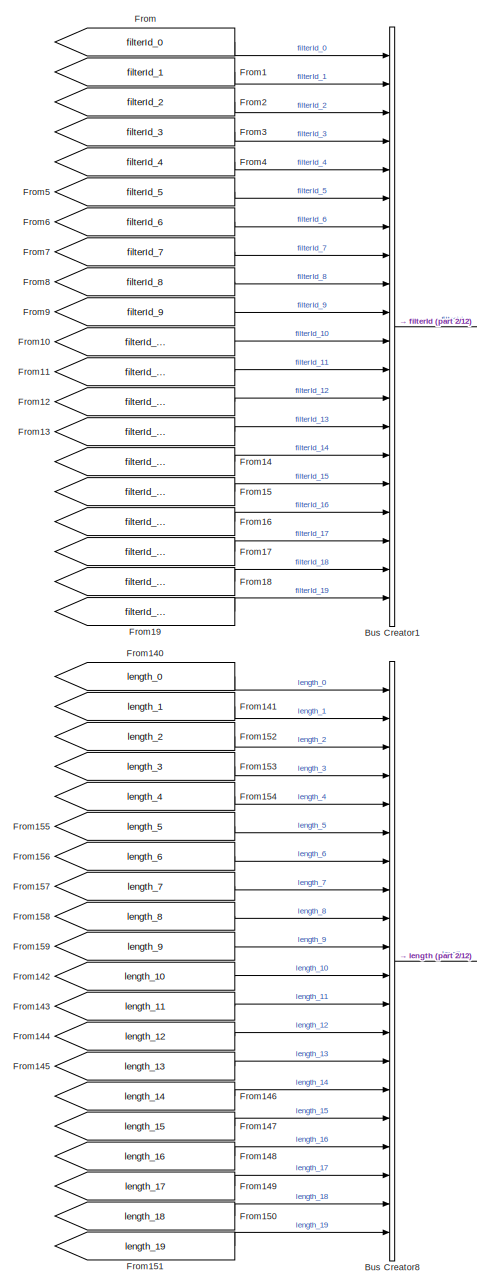
[diagram: root canvas - part 1/12, top left region]
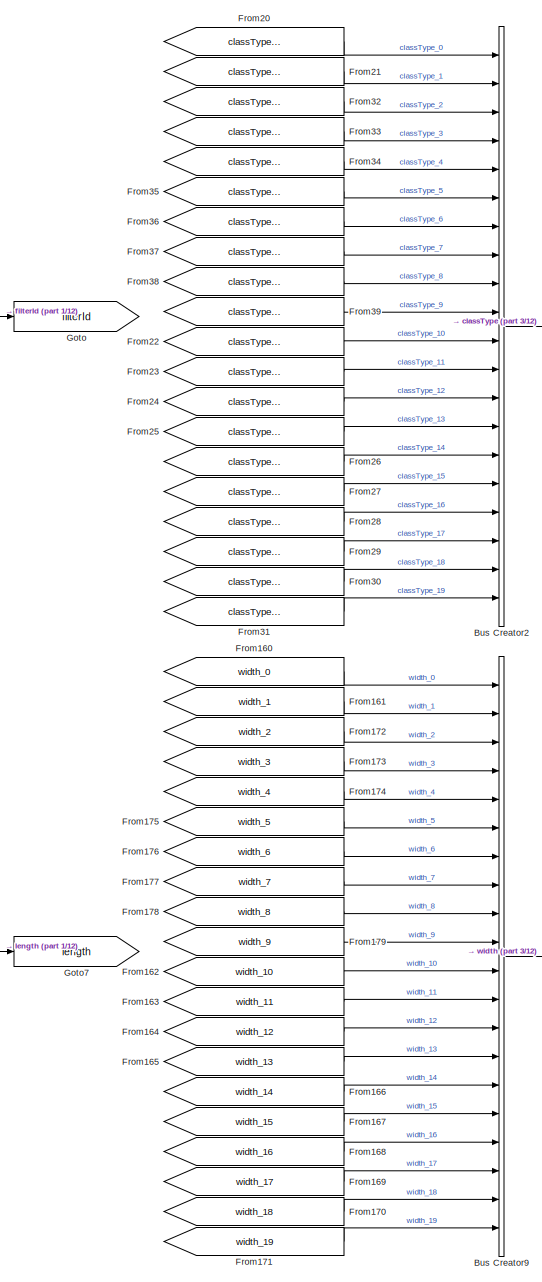
[diagram: root canvas - part 2/12, middle left region]
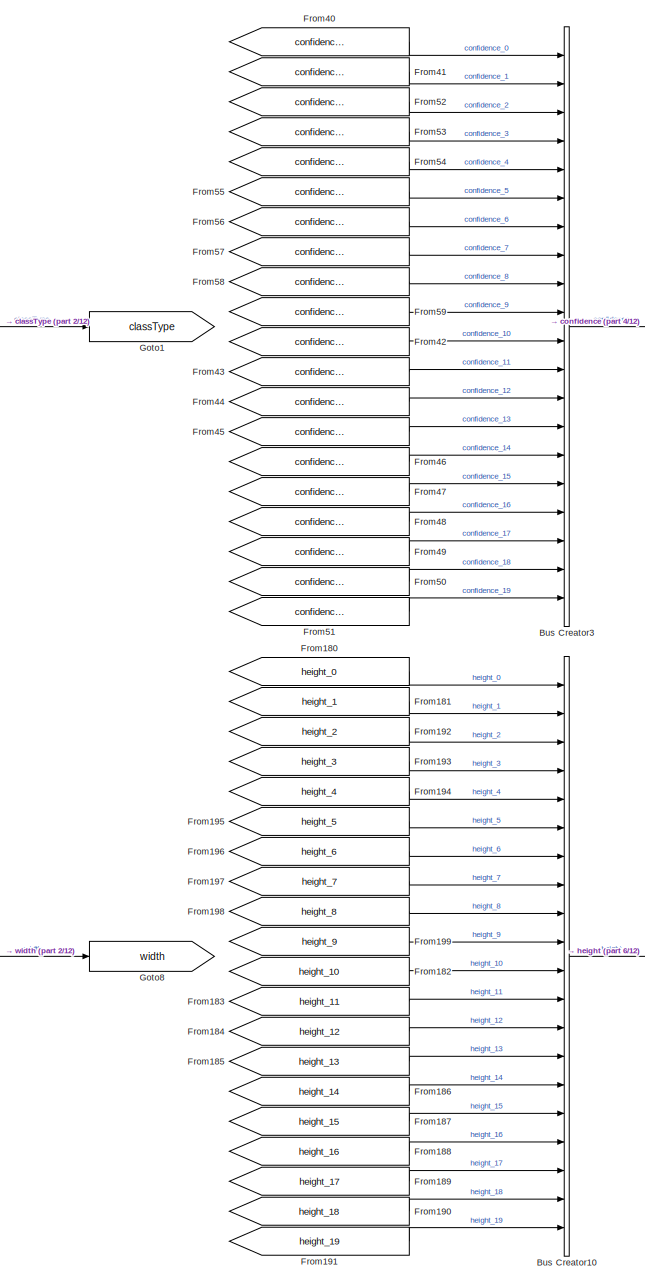
[diagram: root canvas - part 3/12, middle left region]
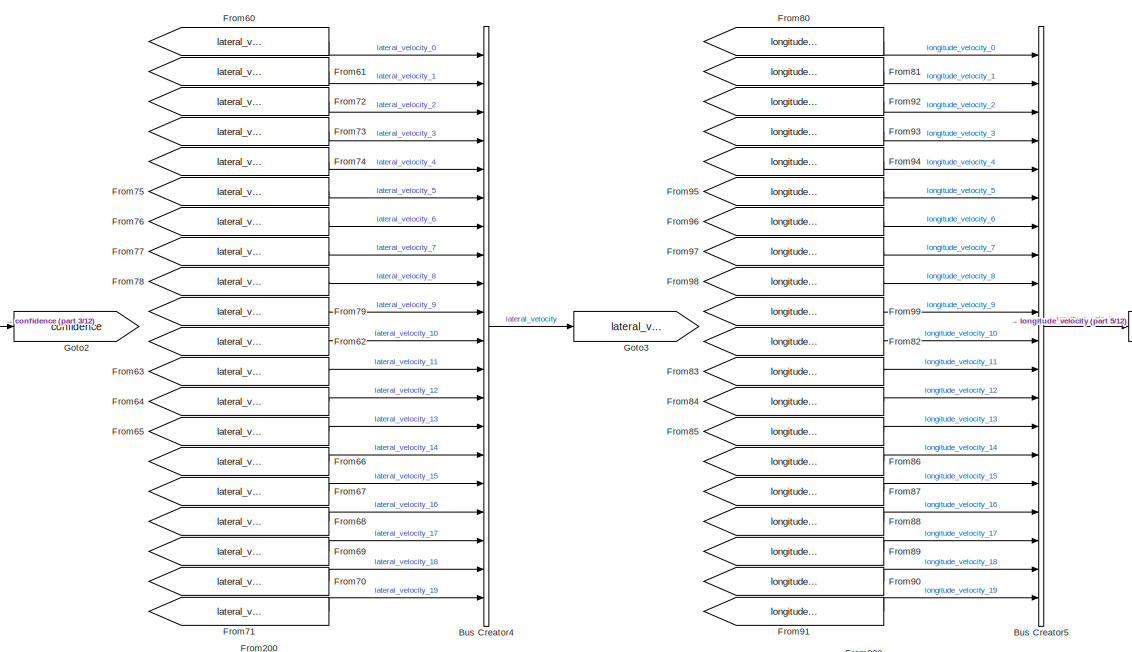
[diagram: root canvas - part 4/12, top center region]
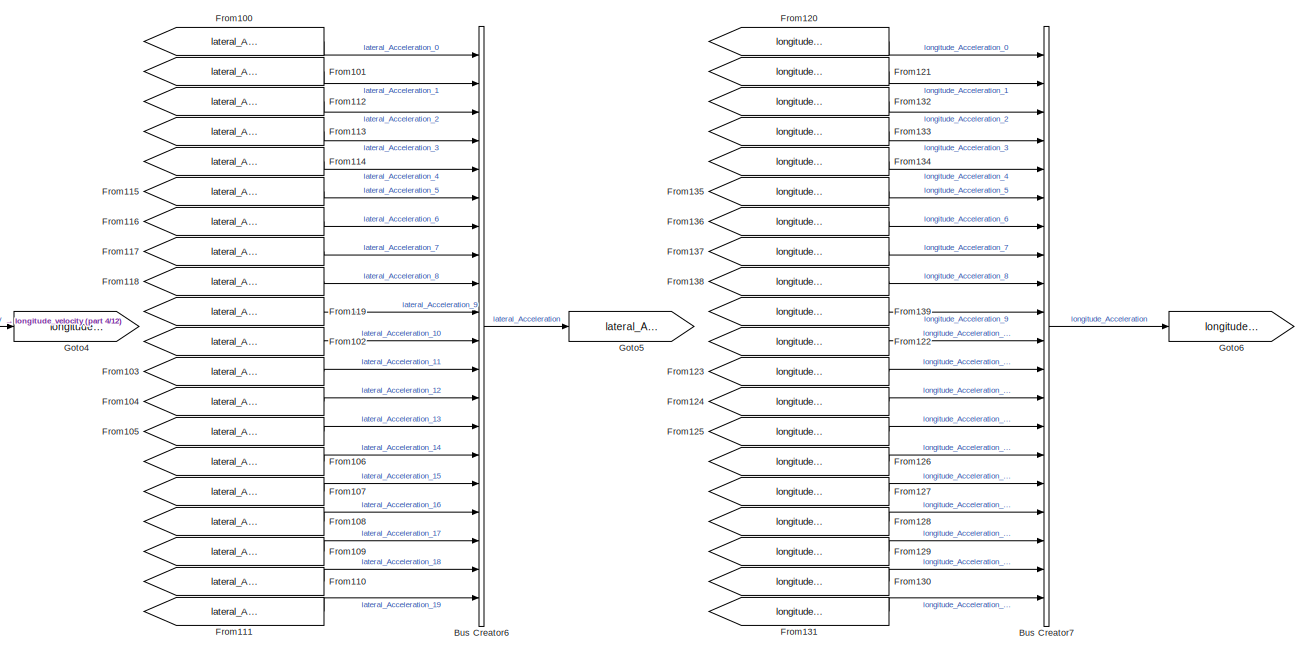
[diagram: root canvas - part 5/12, top center region]
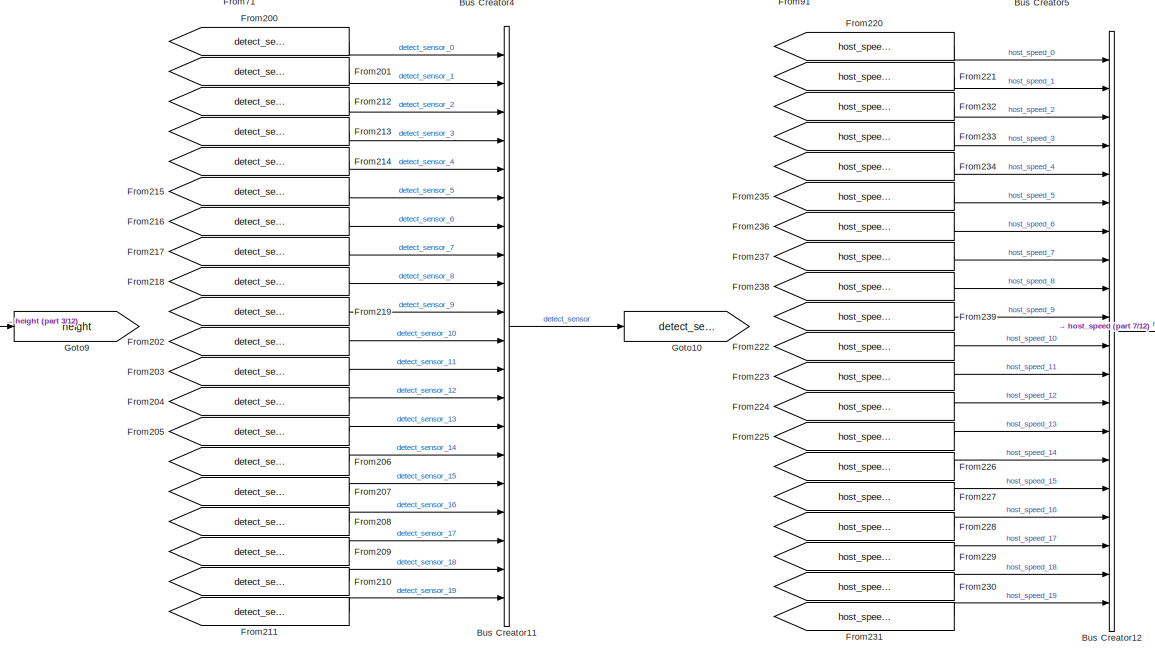
[diagram: root canvas - part 6/12, central region]
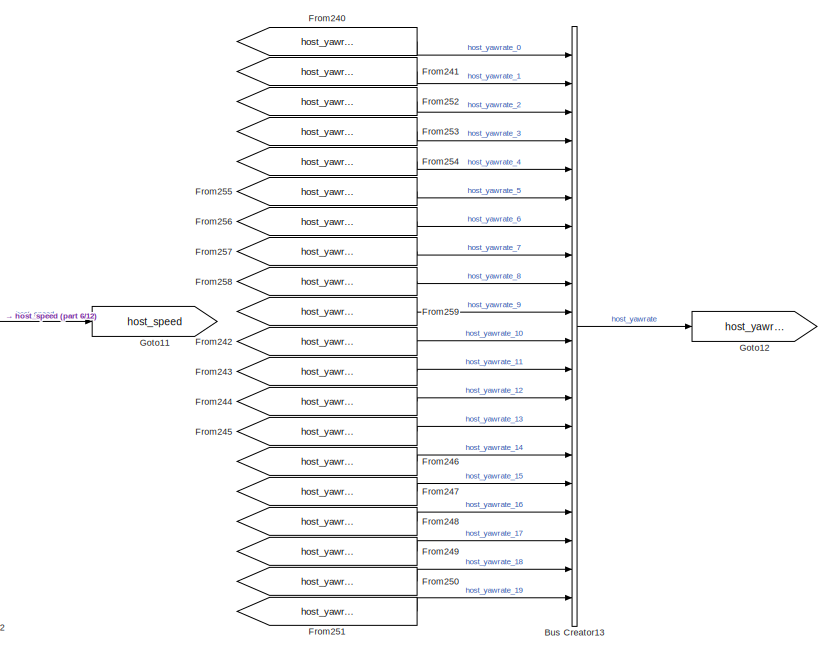
[diagram: root canvas - part 7/12, central region]
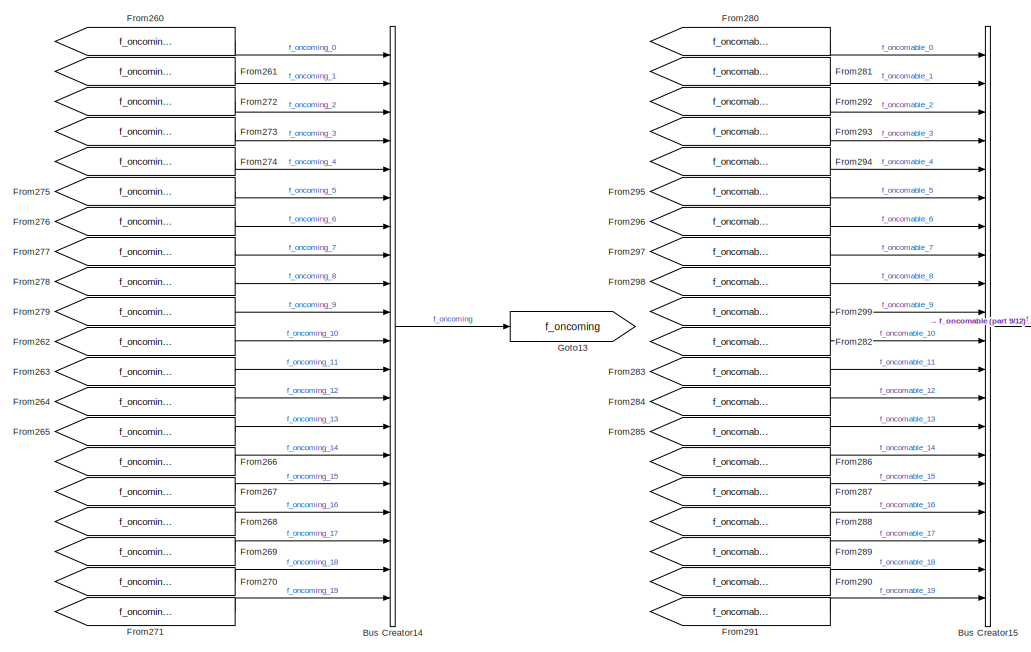
[diagram: root canvas - part 8/12, bottom left region]
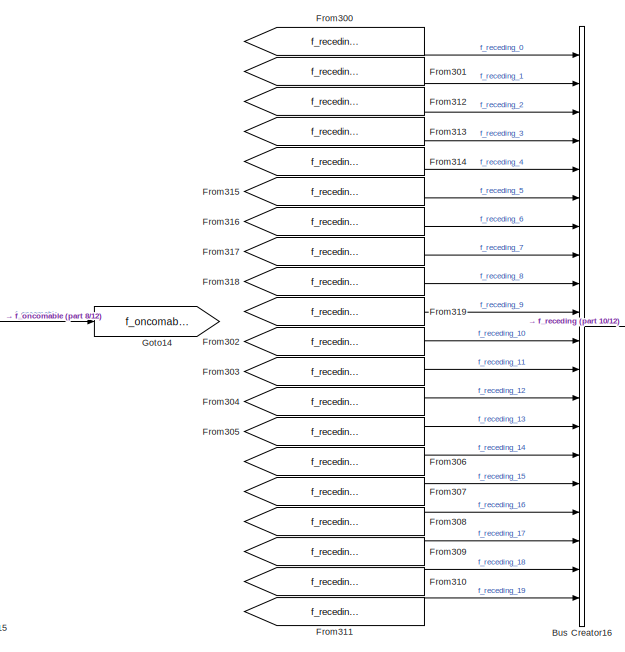
[diagram: root canvas - part 9/12, bottom left region]
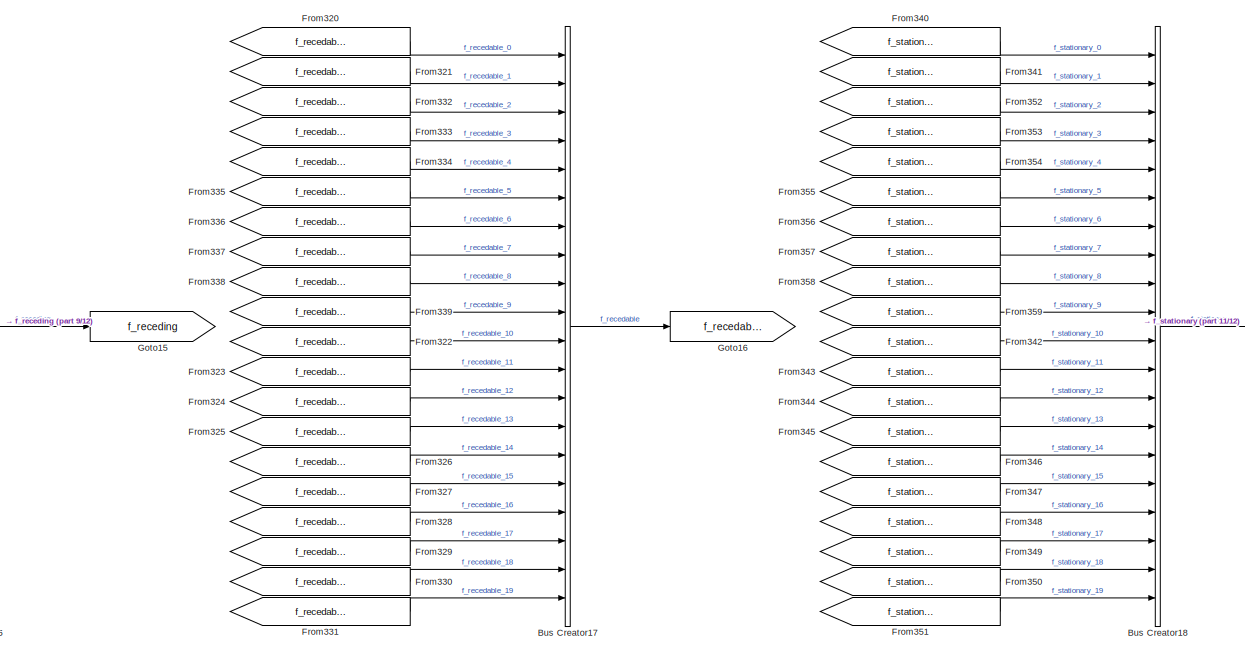
[diagram: root canvas - part 10/12, bottom center region]
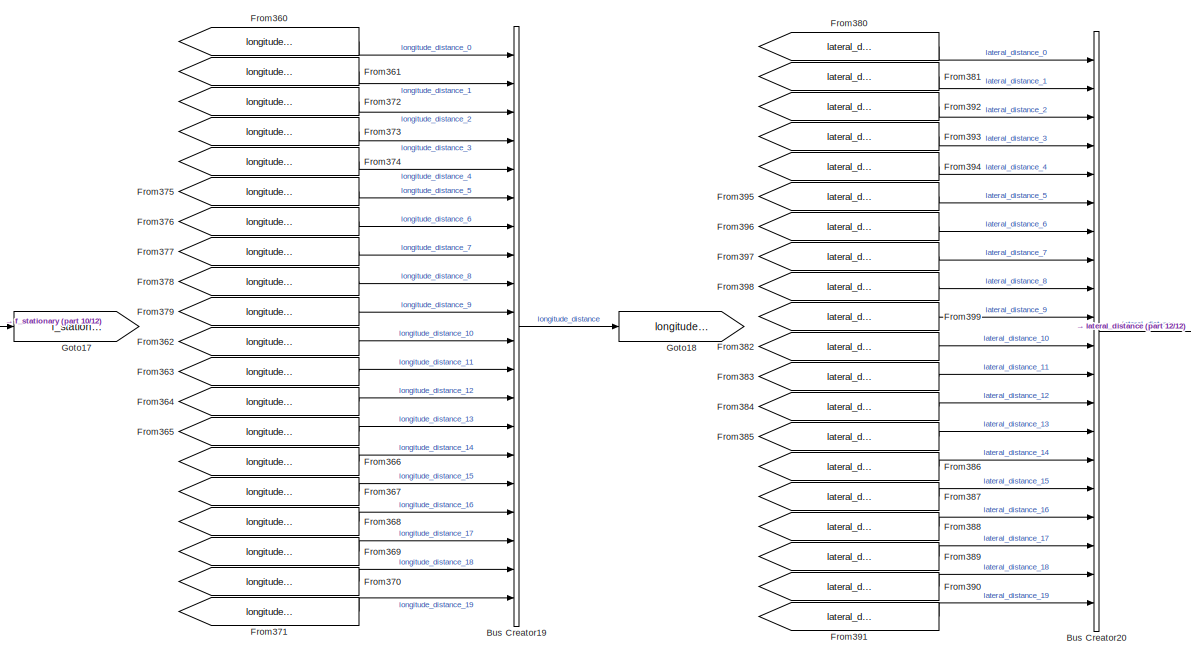
[diagram: root canvas - part 11/12, bottom center region]
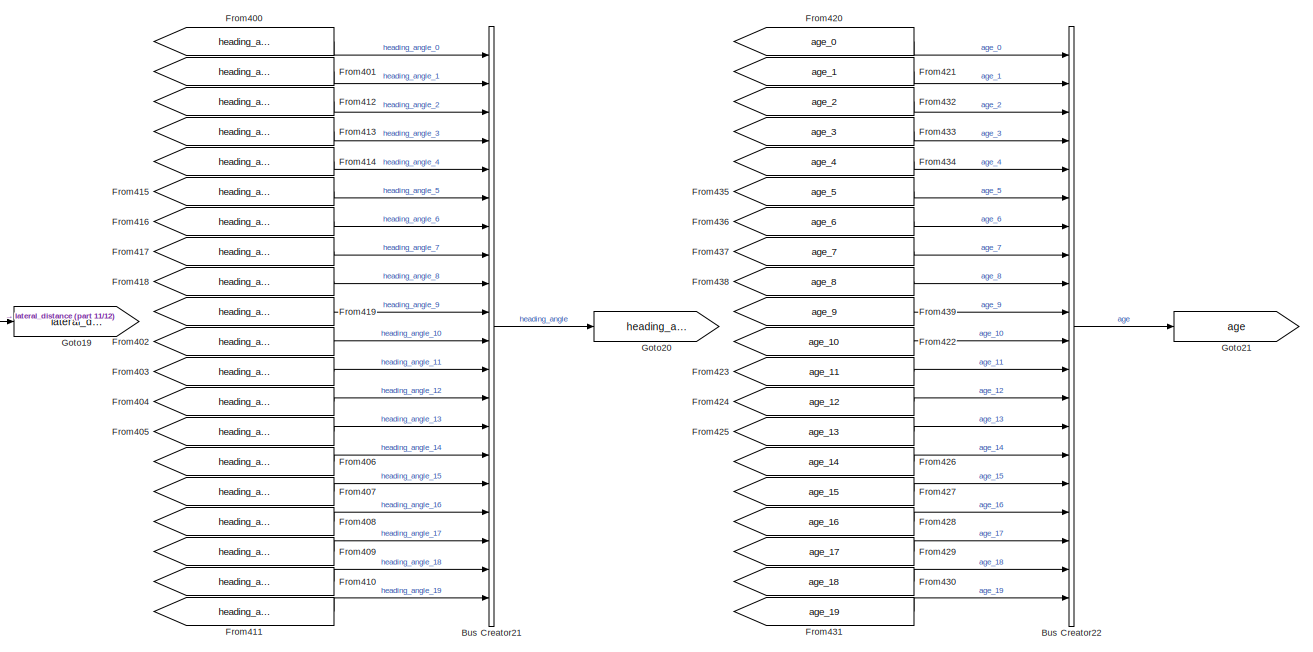
[diagram: root canvas - part 12/12, bottom right region]
MODEL slx_2e494944c7fb
KIND model
CONFIG AbsTol = auto
CONFIG FixedStep = auto
CONFIG MaxStep = auto
CONFIG MinStep = auto
CONFIG RelTol = 1e-3
CONFIG SampleTimeConstraint = Unconstrained
CONFIG Solver = VariableStepAuto
CONFIG SolverMode = Auto
CONFIG SolverName = VariableStepAuto
CONFIG StartTime = 0.0
CONFIG StopTime = 10.0
BLOCK [BusCreator] Bus Creator1
  DisplayOption = bar
  InheritFromInputs = on
  Inputs = 20
  Ports = [20, 1]
BLOCK [BusCreator] Bus Creator10
  DisplayOption = bar
  InheritFromInputs = on
  Inputs = 20
  Ports = [20, 1]
BLOCK [BusCreator] Bus Creator11
  DisplayOption = bar
  InheritFromInputs = on
  Inputs = 20
  Ports = [20, 1]
BLOCK [BusCreator] Bus Creator12
  DisplayOption = bar
  InheritFromInputs = on
  Inputs = 20
  Ports = [20, 1]
BLOCK [BusCreator] Bus Creator13
  DisplayOption = bar
  InheritFromInputs = on
  Inputs = 20
  Ports = [20, 1]
BLOCK [BusCreator] Bus Creator14
  DisplayOption = bar
  InheritFromInputs = on
  Inputs = 20
  Ports = [20, 1]
BLOCK [BusCreator] Bus Creator15
  DisplayOption = bar
  InheritFromInputs = on
  Inputs = 20
  Ports = [20, 1]
BLOCK [BusCreator] Bus Creator16
  DisplayOption = bar
  InheritFromInputs = on
  Inputs = 20
  Ports = [20, 1]
BLOCK [BusCreator] Bus Creator17
  DisplayOption = bar
  InheritFromInputs = on
  Inputs = 20
  Ports = [20, 1]
BLOCK [BusCreator] Bus Creator18
  DisplayOption = bar
  InheritFromInputs = on
  Inputs = 20
  Ports = [20, 1]
BLOCK [BusCreator] Bus Creator19
  DisplayOption = bar
  InheritFromInputs = on
  Inputs = 20
  Ports = [20, 1]
BLOCK [BusCreator] Bus Creator2
  DisplayOption = bar
  InheritFromInputs = on
  Inputs = 20
  Ports = [20, 1]
BLOCK [BusCreator] Bus Creator20
  DisplayOption = bar
  InheritFromInputs = on
  Inputs = 20
  Ports = [20, 1]
BLOCK [BusCreator] Bus Creator21
  DisplayOption = bar
  InheritFromInputs = on
  Inputs = 20
  Ports = [20, 1]
BLOCK [BusCreator] Bus Creator22
  DisplayOption = bar
  InheritFromInputs = on
  Inputs = 20
  Ports = [20, 1]
BLOCK [BusCreator] Bus Creator3
  DisplayOption = bar
  InheritFromInputs = on
  Inputs = 20
  Ports = [20, 1]
BLOCK [BusCreator] Bus Creator4
  DisplayOption = bar
  InheritFromInputs = on
  Inputs = 20
  Ports = [20, 1]
BLOCK [BusCreator] Bus Creator5
  DisplayOption = bar
  InheritFromInputs = on
  Inputs = 20
  Ports = [20, 1]
BLOCK [BusCreator] Bus Creator6
  DisplayOption = bar
  InheritFromInputs = on
  Inputs = 20
  Ports = [20, 1]
BLOCK [BusCreator] Bus Creator7
  DisplayOption = bar
  InheritFromInputs = on
  Inputs = 20
  Ports = [20, 1]
BLOCK [BusCreator] Bus Creator8
  DisplayOption = bar
  InheritFromInputs = on
  Inputs = 20
  Ports = [20, 1]
BLOCK [BusCreator] Bus Creator9
  DisplayOption = bar
  InheritFromInputs = on
  Inputs = 20
  Ports = [20, 1]
BLOCK [From] From
  GotoTag = filterId_0
BLOCK [From] From1
  GotoTag = filterId_1
BLOCK [From] From10
  GotoTag = filterId_10
BLOCK [From] From100
  GotoTag = lateral_Acceleration_0
BLOCK [From] From101
  GotoTag = lateral_Acceleration_1
BLOCK [From] From102
  GotoTag = lateral_Acceleration_10
BLOCK [From] From103
  GotoTag = lateral_Acceleration_11
BLOCK [From] From104
  GotoTag = lateral_Acceleration_12
BLOCK [From] From105
  GotoTag = lateral_Acceleration_13
BLOCK [From] From106
  GotoTag = lateral_Acceleration_14
BLOCK [From] From107
  GotoTag = lateral_Acceleration_15
BLOCK [From] From108
  GotoTag = lateral_Acceleration_16
BLOCK [From] From109
  GotoTag = lateral_Acceleration_17
BLOCK [From] From11
  GotoTag = filterId_11
BLOCK [From] From110
  GotoTag = lateral_Acceleration_18
BLOCK [From] From111
  GotoTag = lateral_Acceleration_19
BLOCK [From] From112
  GotoTag = lateral_Acceleration_2
BLOCK [From] From113
  GotoTag = lateral_Acceleration_3
BLOCK [From] From114
  GotoTag = lateral_Acceleration_4
BLOCK [From] From115
  GotoTag = lateral_Acceleration_5
BLOCK [From] From116
  GotoTag = lateral_Acceleration_6
BLOCK [From] From117
  GotoTag = lateral_Acceleration_7
BLOCK [From] From118
  GotoTag = lateral_Acceleration_8
BLOCK [From] From119
  GotoTag = lateral_Acceleration_9
BLOCK [From] From12
  GotoTag = filterId_12
BLOCK [From] From120
  GotoTag = longitude_Acceleration_0
BLOCK [From] From121
  GotoTag = longitude_Acceleration_1
BLOCK [From] From122
  GotoTag = longitude_Acceleration_10
BLOCK [From] From123
  GotoTag = longitude_Acceleration_11
BLOCK [From] From124
  GotoTag = longitude_Acceleration_12
BLOCK [From] From125
  GotoTag = longitude_Acceleration_13
BLOCK [From] From126
  GotoTag = longitude_Acceleration_14
BLOCK [From] From127
  GotoTag = longitude_Acceleration_15
BLOCK [From] From128
  GotoTag = longitude_Acceleration_16
BLOCK [From] From129
  GotoTag = longitude_Acceleration_17
BLOCK [From] From13
  GotoTag = filterId_13
BLOCK [From] From130
  GotoTag = longitude_Acceleration_18
BLOCK [From] From131
  GotoTag = longitude_Acceleration_19
BLOCK [From] From132
  GotoTag = longitude_Acceleration_2
BLOCK [From] From133
  GotoTag = longitude_Acceleration_3
BLOCK [From] From134
  GotoTag = longitude_Acceleration_4
BLOCK [From] From135
  GotoTag = longitude_Acceleration_5
BLOCK [From] From136
  GotoTag = longitude_Acceleration_6
BLOCK [From] From137
  GotoTag = longitude_Acceleration_7
BLOCK [From] From138
  GotoTag = longitude_Acceleration_8
BLOCK [From] From139
  GotoTag = longitude_Acceleration_9
BLOCK [From] From14
  GotoTag = filterId_14
BLOCK [From] From140
  GotoTag = length_0
BLOCK [From] From141
  GotoTag = length_1
BLOCK [From] From142
  GotoTag = length_10
BLOCK [From] From143
  GotoTag = length_11
BLOCK [From] From144
  GotoTag = length_12
BLOCK [From] From145
  GotoTag = length_13
BLOCK [From] From146
  GotoTag = length_14
BLOCK [From] From147
  GotoTag = length_15
BLOCK [From] From148
  GotoTag = length_16
BLOCK [From] From149
  GotoTag = length_17
BLOCK [From] From15
  GotoTag = filterId_15
BLOCK [From] From150
  GotoTag = length_18
BLOCK [From] From151
  GotoTag = length_19
BLOCK [From] From152
  GotoTag = length_2
BLOCK [From] From153
  GotoTag = length_3
BLOCK [From] From154
  GotoTag = length_4
BLOCK [From] From155
  GotoTag = length_5
BLOCK [From] From156
  GotoTag = length_6
BLOCK [From] From157
  GotoTag = length_7
BLOCK [From] From158
  GotoTag = length_8
BLOCK [From] From159
  GotoTag = length_9
BLOCK [From] From16
  GotoTag = filterId_16
BLOCK [From] From160
  GotoTag = width_0
BLOCK [From] From161
  GotoTag = width_1
BLOCK [From] From162
  GotoTag = width_10
BLOCK [From] From163
  GotoTag = width_11
BLOCK [From] From164
  GotoTag = width_12
BLOCK [From] From165
  GotoTag = width_13
BLOCK [From] From166
  GotoTag = width_14
BLOCK [From] From167
  GotoTag = width_15
BLOCK [From] From168
  GotoTag = width_16
BLOCK [From] From169
  GotoTag = width_17
BLOCK [From] From17
  GotoTag = filterId_17
BLOCK [From] From170
  GotoTag = width_18
BLOCK [From] From171
  GotoTag = width_19
BLOCK [From] From172
  GotoTag = width_2
BLOCK [From] From173
  GotoTag = width_3
BLOCK [From] From174
  GotoTag = width_4
BLOCK [From] From175
  GotoTag = width_5
BLOCK [From] From176
  GotoTag = width_6
BLOCK [From] From177
  GotoTag = width_7
BLOCK [From] From178
  GotoTag = width_8
BLOCK [From] From179
  GotoTag = width_9
BLOCK [From] From18
  GotoTag = filterId_18
BLOCK [From] From180
  GotoTag = height_0
BLOCK [From] From181
  GotoTag = height_1
BLOCK [From] From182
  GotoTag = height_10
BLOCK [From] From183
  GotoTag = height_11
BLOCK [From] From184
  GotoTag = height_12
BLOCK [From] From185
  GotoTag = height_13
BLOCK [From] From186
  GotoTag = height_14
BLOCK [From] From187
  GotoTag = height_15
BLOCK [From] From188
  GotoTag = height_16
BLOCK [From] From189
  GotoTag = height_17
BLOCK [From] From19
  GotoTag = filterId_19
BLOCK [From] From190
  GotoTag = height_18
BLOCK [From] From191
  GotoTag = height_19
BLOCK [From] From192
  GotoTag = height_2
BLOCK [From] From193
  GotoTag = height_3
BLOCK [From] From194
  GotoTag = height_4
BLOCK [From] From195
  GotoTag = height_5
BLOCK [From] From196
  GotoTag = height_6
BLOCK [From] From197
  GotoTag = height_7
BLOCK [From] From198
  GotoTag = height_8
BLOCK [From] From199
  GotoTag = height_9
BLOCK [From] From2
  GotoTag = filterId_2
BLOCK [From] From20
  GotoTag = classType_0
BLOCK [From] From200
  GotoTag = detect_sensor_0
BLOCK [From] From201
  GotoTag = detect_sensor_1
BLOCK [From] From202
  GotoTag = detect_sensor_10
BLOCK [From] From203
  GotoTag = detect_sensor_11
BLOCK [From] From204
  GotoTag = detect_sensor_12
BLOCK [From] From205
  GotoTag = detect_sensor_13
BLOCK [From] From206
  GotoTag = detect_sensor_14
BLOCK [From] From207
  GotoTag = detect_sensor_15
BLOCK [From] From208
  GotoTag = detect_sensor_16
BLOCK [From] From209
  GotoTag = detect_sensor_17
BLOCK [From] From21
  GotoTag = classType_1
BLOCK [From] From210
  GotoTag = detect_sensor_18
BLOCK [From] From211
  GotoTag = detect_sensor_19
BLOCK [From] From212
  GotoTag = detect_sensor_2
BLOCK [From] From213
  GotoTag = detect_sensor_3
BLOCK [From] From214
  GotoTag = detect_sensor_4
BLOCK [From] From215
  GotoTag = detect_sensor_5
BLOCK [From] From216
  GotoTag = detect_sensor_6
BLOCK [From] From217
  GotoTag = detect_sensor_7
BLOCK [From] From218
  GotoTag = detect_sensor_8
BLOCK [From] From219
  GotoTag = detect_sensor_9
BLOCK [From] From22
  GotoTag = classType_10
BLOCK [From] From220
  GotoTag = host_speed_0
BLOCK [From] From221
  GotoTag = host_speed_1
BLOCK [From] From222
  GotoTag = host_speed_10
BLOCK [From] From223
  GotoTag = host_speed_11
BLOCK [From] From224
  GotoTag = host_speed_12
BLOCK [From] From225
  GotoTag = host_speed_13
BLOCK [From] From226
  GotoTag = host_speed_14
BLOCK [From] From227
  GotoTag = host_speed_15
BLOCK [From] From228
  GotoTag = host_speed_16
BLOCK [From] From229
  GotoTag = host_speed_17
BLOCK [From] From23
  GotoTag = classType_11
BLOCK [From] From230
  GotoTag = host_speed_18
BLOCK [From] From231
  GotoTag = host_speed_19
BLOCK [From] From232
  GotoTag = host_speed_2
BLOCK [From] From233
  GotoTag = host_speed_3
BLOCK [From] From234
  GotoTag = host_speed_4
BLOCK [From] From235
  GotoTag = host_speed_5
BLOCK [From] From236
  GotoTag = host_speed_6
BLOCK [From] From237
  GotoTag = host_speed_7
BLOCK [From] From238
  GotoTag = host_speed_8
BLOCK [From] From239
  GotoTag = host_speed_9
BLOCK [From] From24
  GotoTag = classType_12
BLOCK [From] From240
  GotoTag = host_yawrate_0
BLOCK [From] From241
  GotoTag = host_yawrate_1
BLOCK [From] From242
  GotoTag = host_yawrate_10
BLOCK [From] From243
  GotoTag = host_yawrate_11
BLOCK [From] From244
  GotoTag = host_yawrate_12
BLOCK [From] From245
  GotoTag = host_yawrate_13
BLOCK [From] From246
  GotoTag = host_yawrate_14
BLOCK [From] From247
  GotoTag = host_yawrate_15
BLOCK [From] From248
  GotoTag = host_yawrate_16
BLOCK [From] From249
  GotoTag = host_yawrate_17
BLOCK [From] From25
  GotoTag = classType_13
BLOCK [From] From250
  GotoTag = host_yawrate_18
BLOCK [From] From251
  GotoTag = host_yawrate_19
BLOCK [From] From252
  GotoTag = host_yawrate_2
BLOCK [From] From253
  GotoTag = host_yawrate_3
BLOCK [From] From254
  GotoTag = host_yawrate_4
BLOCK [From] From255
  GotoTag = host_yawrate_5
BLOCK [From] From256
  GotoTag = host_yawrate_6
BLOCK [From] From257
  GotoTag = host_yawrate_7
BLOCK [From] From258
  GotoTag = host_yawrate_8
BLOCK [From] From259
  GotoTag = host_yawrate_9
BLOCK [From] From26
  GotoTag = classType_14
BLOCK [From] From260
  GotoTag = f_oncoming_0
BLOCK [From] From261
  GotoTag = f_oncoming_1
BLOCK [From] From262
  GotoTag = f_oncoming_10
BLOCK [From] From263
  GotoTag = f_oncoming_11
BLOCK [From] From264
  GotoTag = f_oncoming_12
BLOCK [From] From265
  GotoTag = f_oncoming_13
BLOCK [From] From266
  GotoTag = f_oncoming_14
BLOCK [From] From267
  GotoTag = f_oncoming_15
BLOCK [From] From268
  GotoTag = f_oncoming_16
BLOCK [From] From269
  GotoTag = f_oncoming_17
BLOCK [From] From27
  GotoTag = classType_15
BLOCK [From] From270
  GotoTag = f_oncoming_18
BLOCK [From] From271
  GotoTag = f_oncoming_19
BLOCK [From] From272
  GotoTag = f_oncoming_2
BLOCK [From] From273
  GotoTag = f_oncoming_3
BLOCK [From] From274
  GotoTag = f_oncoming_4
BLOCK [From] From275
  GotoTag = f_oncoming_5
BLOCK [From] From276
  GotoTag = f_oncoming_6
BLOCK [From] From277
  GotoTag = f_oncoming_7
BLOCK [From] From278
  GotoTag = f_oncoming_8
BLOCK [From] From279
  GotoTag = f_oncoming_9
BLOCK [From] From28
  GotoTag = classType_16
BLOCK [From] From280
  GotoTag = f_oncomable_0
BLOCK [From] From281
  GotoTag = f_oncomable_1
BLOCK [From] From282
  GotoTag = f_oncomable_10
BLOCK [From] From283
  GotoTag = f_oncomable_11
BLOCK [From] From284
  GotoTag = f_oncomable_12
BLOCK [From] From285
  GotoTag = f_oncomable_13
BLOCK [From] From286
  GotoTag = f_oncomable_14
BLOCK [From] From287
  GotoTag = f_oncomable_15
BLOCK [From] From288
  GotoTag = f_oncomable_16
BLOCK [From] From289
  GotoTag = f_oncomable_17
BLOCK [From] From29
  GotoTag = classType_17
BLOCK [From] From290
  GotoTag = f_oncomable_18
BLOCK [From] From291
  GotoTag = f_oncomable_19
BLOCK [From] From292
  GotoTag = f_oncomable_2
BLOCK [From] From293
  GotoTag = f_oncomable_3
BLOCK [From] From294
  GotoTag = f_oncomable_4
BLOCK [From] From295
  GotoTag = f_oncomable_5
BLOCK [From] From296
  GotoTag = f_oncomable_6
BLOCK [From] From297
  GotoTag = f_oncomable_7
BLOCK [From] From298
  GotoTag = f_oncomable_8
BLOCK [From] From299
  GotoTag = f_oncomable_9
BLOCK [From] From3
  GotoTag = filterId_3
BLOCK [From] From30
  GotoTag = classType_18
BLOCK [From] From300
  GotoTag = f_receding_0
BLOCK [From] From301
  GotoTag = f_receding_1
BLOCK [From] From302
  GotoTag = f_receding_10
BLOCK [From] From303
  GotoTag = f_receding_11
BLOCK [From] From304
  GotoTag = f_receding_12
BLOCK [From] From305
  GotoTag = f_receding_13
BLOCK [From] From306
  GotoTag = f_receding_14
BLOCK [From] From307
  GotoTag = f_receding_15
BLOCK [From] From308
  GotoTag = f_receding_16
BLOCK [From] From309
  GotoTag = f_receding_17
BLOCK [From] From31
  GotoTag = classType_19
BLOCK [From] From310
  GotoTag = f_receding_18
BLOCK [From] From311
  GotoTag = f_receding_19
BLOCK [From] From312
  GotoTag = f_receding_2
BLOCK [From] From313
  GotoTag = f_receding_3
BLOCK [From] From314
  GotoTag = f_receding_4
BLOCK [From] From315
  GotoTag = f_receding_5
BLOCK [From] From316
  GotoTag = f_receding_6
BLOCK [From] From317
  GotoTag = f_receding_7
BLOCK [From] From318
  GotoTag = f_receding_8
BLOCK [From] From319
  GotoTag = f_receding_9
BLOCK [From] From32
  GotoTag = classType_2
BLOCK [From] From320
  GotoTag = f_recedable_0
BLOCK [From] From321
  GotoTag = f_recedable_1
BLOCK [From] From322
  GotoTag = f_recedable_10
BLOCK [From] From323
  GotoTag = f_recedable_11
BLOCK [From] From324
  GotoTag = f_recedable_12
BLOCK [From] From325
  GotoTag = f_recedable_13
BLOCK [From] From326
  GotoTag = f_recedable_14
BLOCK [From] From327
  GotoTag = f_recedable_15
BLOCK [From] From328
  GotoTag = f_recedable_16
BLOCK [From] From329
  GotoTag = f_recedable_17
BLOCK [From] From33
  GotoTag = classType_3
BLOCK [From] From330
  GotoTag = f_recedable_18
BLOCK [From] From331
  GotoTag = f_recedable_19
BLOCK [From] From332
  GotoTag = f_recedable_2
BLOCK [From] From333
  GotoTag = f_recedable_3
BLOCK [From] From334
  GotoTag = f_recedable_4
BLOCK [From] From335
  GotoTag = f_recedable_5
BLOCK [From] From336
  GotoTag = f_recedable_6
BLOCK [From] From337
  GotoTag = f_recedable_7
BLOCK [From] From338
  GotoTag = f_recedable_8
BLOCK [From] From339
  GotoTag = f_recedable_9
BLOCK [From] From34
  GotoTag = classType_4
BLOCK [From] From340
  GotoTag = f_stationary_0
BLOCK [From] From341
  GotoTag = f_stationary_1
BLOCK [From] From342
  GotoTag = f_stationary_10
BLOCK [From] From343
  GotoTag = f_stationary_11
BLOCK [From] From344
  GotoTag = f_stationary_12
BLOCK [From] From345
  GotoTag = f_stationary_13
BLOCK [From] From346
  GotoTag = f_stationary_14
BLOCK [From] From347
  GotoTag = f_stationary_15
BLOCK [From] From348
  GotoTag = f_stationary_16
BLOCK [From] From349
  GotoTag = f_stationary_17
BLOCK [From] From35
  GotoTag = classType_5
BLOCK [From] From350
  GotoTag = f_stationary_18
BLOCK [From] From351
  GotoTag = f_stationary_19
BLOCK [From] From352
  GotoTag = f_stationary_2
BLOCK [From] From353
  GotoTag = f_stationary_3
BLOCK [From] From354
  GotoTag = f_stationary_4
BLOCK [From] From355
  GotoTag = f_stationary_5
BLOCK [From] From356
  GotoTag = f_stationary_6
BLOCK [From] From357
  GotoTag = f_stationary_7
BLOCK [From] From358
  GotoTag = f_stationary_8
BLOCK [From] From359
  GotoTag = f_stationary_9
BLOCK [From] From36
  GotoTag = classType_6
BLOCK [From] From360
  GotoTag = longitude_distance_0
BLOCK [From] From361
  GotoTag = longitude_distance_1
BLOCK [From] From362
  GotoTag = longitude_distance_10
BLOCK [From] From363
  GotoTag = longitude_distance_11
BLOCK [From] From364
  GotoTag = longitude_distance_12
BLOCK [From] From365
  GotoTag = longitude_distance_13
BLOCK [From] From366
  GotoTag = longitude_distance_14
BLOCK [From] From367
  GotoTag = longitude_distance_15
BLOCK [From] From368
  GotoTag = longitude_distance_16
BLOCK [From] From369
  GotoTag = longitude_distance_17
BLOCK [From] From37
  GotoTag = classType_7
BLOCK [From] From370
  GotoTag = longitude_distance_18
BLOCK [From] From371
  GotoTag = longitude_distance_19
BLOCK [From] From372
  GotoTag = longitude_distance_2
BLOCK [From] From373
  GotoTag = longitude_distance_3
BLOCK [From] From374
  GotoTag = longitude_distance_4
BLOCK [From] From375
  GotoTag = longitude_distance_5
BLOCK [From] From376
  GotoTag = longitude_distance_6
BLOCK [From] From377
  GotoTag = longitude_distance_7
BLOCK [From] From378
  GotoTag = longitude_distance_8
BLOCK [From] From379
  GotoTag = longitude_distance_9
BLOCK [From] From38
  GotoTag = classType_8
BLOCK [From] From380
  GotoTag = lateral_distance_0
BLOCK [From] From381
  GotoTag = lateral_distance_1
BLOCK [From] From382
  GotoTag = lateral_distance_10
BLOCK [From] From383
  GotoTag = lateral_distance_11
BLOCK [From] From384
  GotoTag = lateral_distance_12
BLOCK [From] From385
  GotoTag = lateral_distance_13
BLOCK [From] From386
  GotoTag = lateral_distance_14
BLOCK [From] From387
  GotoTag = lateral_distance_15
BLOCK [From] From388
  GotoTag = lateral_distance_16
BLOCK [From] From389
  GotoTag = lateral_distance_17
BLOCK [From] From39
  GotoTag = classType_9
BLOCK [From] From390
  GotoTag = lateral_distance_18
BLOCK [From] From391
  GotoTag = lateral_distance_19
BLOCK [From] From392
  GotoTag = lateral_distance_2
BLOCK [From] From393
  GotoTag = lateral_distance_3
BLOCK [From] From394
  GotoTag = lateral_distance_4
BLOCK [From] From395
  GotoTag = lateral_distance_5
BLOCK [From] From396
  GotoTag = lateral_distance_6
BLOCK [From] From397
  GotoTag = lateral_distance_7
BLOCK [From] From398
  GotoTag = lateral_distance_8
BLOCK [From] From399
  GotoTag = lateral_distance_9
BLOCK [From] From4
  GotoTag = filterId_4
BLOCK [From] From40
  GotoTag = confidence_0
BLOCK [From] From400
  GotoTag = heading_angle_0
BLOCK [From] From401
  GotoTag = heading_angle_1
BLOCK [From] From402
  GotoTag = heading_angle_10
BLOCK [From] From403
  GotoTag = heading_angle_11
BLOCK [From] From404
  GotoTag = heading_angle_12
BLOCK [From] From405
  GotoTag = heading_angle_13
BLOCK [From] From406
  GotoTag = heading_angle_14
BLOCK [From] From407
  GotoTag = heading_angle_15
BLOCK [From] From408
  GotoTag = heading_angle_16
BLOCK [From] From409
  GotoTag = heading_angle_17
BLOCK [From] From41
  GotoTag = confidence_1
BLOCK [From] From410
  GotoTag = heading_angle_18
BLOCK [From] From411
  GotoTag = heading_angle_19
BLOCK [From] From412
  GotoTag = heading_angle_2
BLOCK [From] From413
  GotoTag = heading_angle_3
BLOCK [From] From414
  GotoTag = heading_angle_4
BLOCK [From] From415
  GotoTag = heading_angle_5
BLOCK [From] From416
  GotoTag = heading_angle_6
BLOCK [From] From417
  GotoTag = heading_angle_7
BLOCK [From] From418
  GotoTag = heading_angle_8
BLOCK [From] From419
  GotoTag = heading_angle_9
BLOCK [From] From42
  GotoTag = confidence_10
BLOCK [From] From420
  GotoTag = age_0
BLOCK [From] From421
  GotoTag = age_1
BLOCK [From] From422
  GotoTag = age_10
BLOCK [From] From423
  GotoTag = age_11
BLOCK [From] From424
  GotoTag = age_12
BLOCK [From] From425
  GotoTag = age_13
BLOCK [From] From426
  GotoTag = age_14
BLOCK [From] From427
  GotoTag = age_15
BLOCK [From] From428
  GotoTag = age_16
BLOCK [From] From429
  GotoTag = age_17
BLOCK [From] From43
  GotoTag = confidence_11
BLOCK [From] From430
  GotoTag = age_18
BLOCK [From] From431
  GotoTag = age_19
BLOCK [From] From432
  GotoTag = age_2
BLOCK [From] From433
  GotoTag = age_3
BLOCK [From] From434
  GotoTag = age_4
BLOCK [From] From435
  GotoTag = age_5
BLOCK [From] From436
  GotoTag = age_6
BLOCK [From] From437
  GotoTag = age_7
BLOCK [From] From438
  GotoTag = age_8
BLOCK [From] From439
  GotoTag = age_9
BLOCK [From] From44
  GotoTag = confidence_12
BLOCK [From] From45
  GotoTag = confidence_13
BLOCK [From] From46
  GotoTag = confidence_14
BLOCK [From] From47
  GotoTag = confidence_15
BLOCK [From] From48
  GotoTag = confidence_16
BLOCK [From] From49
  GotoTag = confidence_17
BLOCK [From] From5
  GotoTag = filterId_5
BLOCK [From] From50
  GotoTag = confidence_18
BLOCK [From] From51
  GotoTag = confidence_19
BLOCK [From] From52
  GotoTag = confidence_2
BLOCK [From] From53
  GotoTag = confidence_3
BLOCK [From] From54
  GotoTag = confidence_4
BLOCK [From] From55
  GotoTag = confidence_5
BLOCK [From] From56
  GotoTag = confidence_6
BLOCK [From] From57
  GotoTag = confidence_7
BLOCK [From] From58
  GotoTag = confidence_8
BLOCK [From] From59
  GotoTag = confidence_9
BLOCK [From] From6
  GotoTag = filterId_6
BLOCK [From] From60
  GotoTag = lateral_velocity_0
BLOCK [From] From61
  GotoTag = lateral_velocity_1
BLOCK [From] From62
  GotoTag = lateral_velocity_10
BLOCK [From] From63
  GotoTag = lateral_velocity_11
BLOCK [From] From64
  GotoTag = lateral_velocity_12
BLOCK [From] From65
  GotoTag = lateral_velocity_13
BLOCK [From] From66
  GotoTag = lateral_velocity_14
BLOCK [From] From67
  GotoTag = lateral_velocity_15
BLOCK [From] From68
  GotoTag = lateral_velocity_16
BLOCK [From] From69
  GotoTag = lateral_velocity_17
BLOCK [From] From7
  GotoTag = filterId_7
BLOCK [From] From70
  GotoTag = lateral_velocity_18
BLOCK [From] From71
  GotoTag = lateral_velocity_19
BLOCK [From] From72
  GotoTag = lateral_velocity_2
BLOCK [From] From73
  GotoTag = lateral_velocity_3
BLOCK [From] From74
  GotoTag = lateral_velocity_4
BLOCK [From] From75
  GotoTag = lateral_velocity_5
BLOCK [From] From76
  GotoTag = lateral_velocity_6
BLOCK [From] From77
  GotoTag = lateral_velocity_7
BLOCK [From] From78
  GotoTag = lateral_velocity_8
BLOCK [From] From79
  GotoTag = lateral_velocity_9
BLOCK [From] From8
  GotoTag = filterId_8
BLOCK [From] From80
  GotoTag = longitude_velocity_0
BLOCK [From] From81
  GotoTag = longitude_velocity_1
BLOCK [From] From82
  GotoTag = longitude_velocity_10
BLOCK [From] From83
  GotoTag = longitude_velocity_11
BLOCK [From] From84
  GotoTag = longitude_velocity_12
BLOCK [From] From85
  GotoTag = longitude_velocity_13
BLOCK [From] From86
  GotoTag = longitude_velocity_14
BLOCK [From] From87
  GotoTag = longitude_velocity_15
BLOCK [From] From88
  GotoTag = longitude_velocity_16
BLOCK [From] From89
  GotoTag = longitude_velocity_17
BLOCK [From] From9
  GotoTag = filterId_9
BLOCK [From] From90
  GotoTag = longitude_velocity_18
BLOCK [From] From91
  GotoTag = longitude_velocity_19
BLOCK [From] From92
  GotoTag = longitude_velocity_2
BLOCK [From] From93
  GotoTag = longitude_velocity_3
BLOCK [From] From94
  GotoTag = longitude_velocity_4
BLOCK [From] From95
  GotoTag = longitude_velocity_5
BLOCK [From] From96
  GotoTag = longitude_velocity_6
BLOCK [From] From97
  GotoTag = longitude_velocity_7
BLOCK [From] From98
  GotoTag = longitude_velocity_8
BLOCK [From] From99
  GotoTag = longitude_velocity_9
BLOCK [Goto] Goto
  GotoTag = filterId
BLOCK [Goto] Goto1
  GotoTag = classType
BLOCK [Goto] Goto10
  GotoTag = detect_sensor
BLOCK [Goto] Goto11
  GotoTag = host_speed
BLOCK [Goto] Goto12
  GotoTag = host_yawrate
BLOCK [Goto] Goto13
  GotoTag = f_oncoming
BLOCK [Goto] Goto14
  GotoTag = f_oncomable
BLOCK [Goto] Goto15
  GotoTag = f_receding
BLOCK [Goto] Goto16
  GotoTag = f_recedable
BLOCK [Goto] Goto17
  GotoTag = f_stationary
BLOCK [Goto] Goto18
  GotoTag = longitude_distance
BLOCK [Goto] Goto19
  GotoTag = lateral_distance
BLOCK [Goto] Goto2
  GotoTag = confidence
BLOCK [Goto] Goto20
  GotoTag = heading_angle
BLOCK [Goto] Goto21
  GotoTag = age
BLOCK [Goto] Goto3
  GotoTag = lateral_velocity
BLOCK [Goto] Goto4
  GotoTag = longitude_velocity
BLOCK [Goto] Goto5
  GotoTag = lateral_Acceleration
BLOCK [Goto] Goto6
  GotoTag = longitude_Acceleration
BLOCK [Goto] Goto7
  GotoTag = length
BLOCK [Goto] Goto8
  GotoTag = width
BLOCK [Goto] Goto9
  GotoTag = height
LINE Bus Creator10:1 -> Goto9:1
LINE Bus Creator11:1 -> Goto10:1
LINE Bus Creator12:1 -> Goto11:1
LINE Bus Creator13:1 -> Goto12:1
LINE Bus Creator14:1 -> Goto13:1
LINE Bus Creator15:1 -> Goto14:1
LINE Bus Creator16:1 -> Goto15:1
LINE Bus Creator17:1 -> Goto16:1
LINE Bus Creator18:1 -> Goto17:1
LINE Bus Creator19:1 -> Goto18:1
LINE Bus Creator1:1 -> Goto:1
LINE Bus Creator20:1 -> Goto19:1
LINE Bus Creator21:1 -> Goto20:1
LINE Bus Creator22:1 -> Goto21:1
LINE Bus Creator2:1 -> Goto1:1
LINE Bus Creator3:1 -> Goto2:1
LINE Bus Creator4:1 -> Goto3:1
LINE Bus Creator5:1 -> Goto4:1
LINE Bus Creator6:1 -> Goto5:1
LINE Bus Creator7:1 -> Goto6:1
LINE Bus Creator8:1 -> Goto7:1
LINE Bus Creator9:1 -> Goto8:1
LINE From100:1 -> Bus Creator6:1
LINE From101:1 -> Bus Creator6:2
LINE From102:1 -> Bus Creator6:11
LINE From103:1 -> Bus Creator6:12
LINE From104:1 -> Bus Creator6:13
LINE From105:1 -> Bus Creator6:14
LINE From106:1 -> Bus Creator6:15
LINE From107:1 -> Bus Creator6:16
LINE From108:1 -> Bus Creator6:17
LINE From109:1 -> Bus Creator6:18
LINE From10:1 -> Bus Creator1:11
LINE From110:1 -> Bus Creator6:19
LINE From111:1 -> Bus Creator6:20
LINE From112:1 -> Bus Creator6:3
LINE From113:1 -> Bus Creator6:4
LINE From114:1 -> Bus Creator6:5
LINE From115:1 -> Bus Creator6:6
LINE From116:1 -> Bus Creator6:7
LINE From117:1 -> Bus Creator6:8
LINE From118:1 -> Bus Creator6:9
LINE From119:1 -> Bus Creator6:10
LINE From11:1 -> Bus Creator1:12
LINE From120:1 -> Bus Creator7:1
LINE From121:1 -> Bus Creator7:2
LINE From122:1 -> Bus Creator7:11
LINE From123:1 -> Bus Creator7:12
LINE From124:1 -> Bus Creator7:13
LINE From125:1 -> Bus Creator7:14
LINE From126:1 -> Bus Creator7:15
LINE From127:1 -> Bus Creator7:16
LINE From128:1 -> Bus Creator7:17
LINE From129:1 -> Bus Creator7:18
LINE From12:1 -> Bus Creator1:13
LINE From130:1 -> Bus Creator7:19
LINE From131:1 -> Bus Creator7:20
LINE From132:1 -> Bus Creator7:3
LINE From133:1 -> Bus Creator7:4
LINE From134:1 -> Bus Creator7:5
LINE From135:1 -> Bus Creator7:6
LINE From136:1 -> Bus Creator7:7
LINE From137:1 -> Bus Creator7:8
LINE From138:1 -> Bus Creator7:9
LINE From139:1 -> Bus Creator7:10
LINE From13:1 -> Bus Creator1:14
LINE From140:1 -> Bus Creator8:1
LINE From141:1 -> Bus Creator8:2
LINE From142:1 -> Bus Creator8:11
LINE From143:1 -> Bus Creator8:12
LINE From144:1 -> Bus Creator8:13
LINE From145:1 -> Bus Creator8:14
LINE From146:1 -> Bus Creator8:15
LINE From147:1 -> Bus Creator8:16
LINE From148:1 -> Bus Creator8:17
LINE From149:1 -> Bus Creator8:18
LINE From14:1 -> Bus Creator1:15
LINE From150:1 -> Bus Creator8:19
LINE From151:1 -> Bus Creator8:20
LINE From152:1 -> Bus Creator8:3
LINE From153:1 -> Bus Creator8:4
LINE From154:1 -> Bus Creator8:5
LINE From155:1 -> Bus Creator8:6
LINE From156:1 -> Bus Creator8:7
LINE From157:1 -> Bus Creator8:8
LINE From158:1 -> Bus Creator8:9
LINE From159:1 -> Bus Creator8:10
LINE From15:1 -> Bus Creator1:16
LINE From160:1 -> Bus Creator9:1
LINE From161:1 -> Bus Creator9:2
LINE From162:1 -> Bus Creator9:11
LINE From163:1 -> Bus Creator9:12
LINE From164:1 -> Bus Creator9:13
LINE From165:1 -> Bus Creator9:14
LINE From166:1 -> Bus Creator9:15
LINE From167:1 -> Bus Creator9:16
LINE From168:1 -> Bus Creator9:17
LINE From169:1 -> Bus Creator9:18
LINE From16:1 -> Bus Creator1:17
LINE From170:1 -> Bus Creator9:19
LINE From171:1 -> Bus Creator9:20
LINE From172:1 -> Bus Creator9:3
LINE From173:1 -> Bus Creator9:4
LINE From174:1 -> Bus Creator9:5
LINE From175:1 -> Bus Creator9:6
LINE From176:1 -> Bus Creator9:7
LINE From177:1 -> Bus Creator9:8
LINE From178:1 -> Bus Creator9:9
LINE From179:1 -> Bus Creator9:10
LINE From17:1 -> Bus Creator1:18
LINE From180:1 -> Bus Creator10:1
LINE From181:1 -> Bus Creator10:2
LINE From182:1 -> Bus Creator10:11
LINE From183:1 -> Bus Creator10:12
LINE From184:1 -> Bus Creator10:13
LINE From185:1 -> Bus Creator10:14
LINE From186:1 -> Bus Creator10:15
LINE From187:1 -> Bus Creator10:16
LINE From188:1 -> Bus Creator10:17
LINE From189:1 -> Bus Creator10:18
LINE From18:1 -> Bus Creator1:19
LINE From190:1 -> Bus Creator10:19
LINE From191:1 -> Bus Creator10:20
LINE From192:1 -> Bus Creator10:3
LINE From193:1 -> Bus Creator10:4
LINE From194:1 -> Bus Creator10:5
LINE From195:1 -> Bus Creator10:6
LINE From196:1 -> Bus Creator10:7
LINE From197:1 -> Bus Creator10:8
LINE From198:1 -> Bus Creator10:9
LINE From199:1 -> Bus Creator10:10
LINE From19:1 -> Bus Creator1:20
LINE From1:1 -> Bus Creator1:2
LINE From200:1 -> Bus Creator11:1
LINE From201:1 -> Bus Creator11:2
LINE From202:1 -> Bus Creator11:11
LINE From203:1 -> Bus Creator11:12
LINE From204:1 -> Bus Creator11:13
LINE From205:1 -> Bus Creator11:14
LINE From206:1 -> Bus Creator11:15
LINE From207:1 -> Bus Creator11:16
LINE From208:1 -> Bus Creator11:17
LINE From209:1 -> Bus Creator11:18
LINE From20:1 -> Bus Creator2:1
LINE From210:1 -> Bus Creator11:19
LINE From211:1 -> Bus Creator11:20
LINE From212:1 -> Bus Creator11:3
LINE From213:1 -> Bus Creator11:4
LINE From214:1 -> Bus Creator11:5
LINE From215:1 -> Bus Creator11:6
LINE From216:1 -> Bus Creator11:7
LINE From217:1 -> Bus Creator11:8
LINE From218:1 -> Bus Creator11:9
LINE From219:1 -> Bus Creator11:10
LINE From21:1 -> Bus Creator2:2
LINE From220:1 -> Bus Creator12:1
LINE From221:1 -> Bus Creator12:2
LINE From222:1 -> Bus Creator12:11
LINE From223:1 -> Bus Creator12:12
LINE From224:1 -> Bus Creator12:13
LINE From225:1 -> Bus Creator12:14
LINE From226:1 -> Bus Creator12:15
LINE From227:1 -> Bus Creator12:16
LINE From228:1 -> Bus Creator12:17
LINE From229:1 -> Bus Creator12:18
LINE From22:1 -> Bus Creator2:11
LINE From230:1 -> Bus Creator12:19
LINE From231:1 -> Bus Creator12:20
LINE From232:1 -> Bus Creator12:3
LINE From233:1 -> Bus Creator12:4
LINE From234:1 -> Bus Creator12:5
LINE From235:1 -> Bus Creator12:6
LINE From236:1 -> Bus Creator12:7
LINE From237:1 -> Bus Creator12:8
LINE From238:1 -> Bus Creator12:9
LINE From239:1 -> Bus Creator12:10
LINE From23:1 -> Bus Creator2:12
LINE From240:1 -> Bus Creator13:1
LINE From241:1 -> Bus Creator13:2
LINE From242:1 -> Bus Creator13:11
LINE From243:1 -> Bus Creator13:12
LINE From244:1 -> Bus Creator13:13
LINE From245:1 -> Bus Creator13:14
LINE From246:1 -> Bus Creator13:15
LINE From247:1 -> Bus Creator13:16
LINE From248:1 -> Bus Creator13:17
LINE From249:1 -> Bus Creator13:18
LINE From24:1 -> Bus Creator2:13
LINE From250:1 -> Bus Creator13:19
LINE From251:1 -> Bus Creator13:20
LINE From252:1 -> Bus Creator13:3
LINE From253:1 -> Bus Creator13:4
LINE From254:1 -> Bus Creator13:5
LINE From255:1 -> Bus Creator13:6
LINE From256:1 -> Bus Creator13:7
LINE From257:1 -> Bus Creator13:8
LINE From258:1 -> Bus Creator13:9
LINE From259:1 -> Bus Creator13:10
LINE From25:1 -> Bus Creator2:14
LINE From260:1 -> Bus Creator14:1
LINE From261:1 -> Bus Creator14:2
LINE From262:1 -> Bus Creator14:11
LINE From263:1 -> Bus Creator14:12
LINE From264:1 -> Bus Creator14:13
LINE From265:1 -> Bus Creator14:14
LINE From266:1 -> Bus Creator14:15
LINE From267:1 -> Bus Creator14:16
LINE From268:1 -> Bus Creator14:17
LINE From269:1 -> Bus Creator14:18
LINE From26:1 -> Bus Creator2:15
LINE From270:1 -> Bus Creator14:19
LINE From271:1 -> Bus Creator14:20
LINE From272:1 -> Bus Creator14:3
LINE From273:1 -> Bus Creator14:4
LINE From274:1 -> Bus Creator14:5
LINE From275:1 -> Bus Creator14:6
LINE From276:1 -> Bus Creator14:7
LINE From277:1 -> Bus Creator14:8
LINE From278:1 -> Bus Creator14:9
LINE From279:1 -> Bus Creator14:10
LINE From27:1 -> Bus Creator2:16
LINE From280:1 -> Bus Creator15:1
LINE From281:1 -> Bus Creator15:2
LINE From282:1 -> Bus Creator15:11
LINE From283:1 -> Bus Creator15:12
LINE From284:1 -> Bus Creator15:13
LINE From285:1 -> Bus Creator15:14
LINE From286:1 -> Bus Creator15:15
LINE From287:1 -> Bus Creator15:16
LINE From288:1 -> Bus Creator15:17
LINE From289:1 -> Bus Creator15:18
LINE From28:1 -> Bus Creator2:17
LINE From290:1 -> Bus Creator15:19
LINE From291:1 -> Bus Creator15:20
LINE From292:1 -> Bus Creator15:3
LINE From293:1 -> Bus Creator15:4
LINE From294:1 -> Bus Creator15:5
LINE From295:1 -> Bus Creator15:6
LINE From296:1 -> Bus Creator15:7
LINE From297:1 -> Bus Creator15:8
LINE From298:1 -> Bus Creator15:9
LINE From299:1 -> Bus Creator15:10
LINE From29:1 -> Bus Creator2:18
LINE From2:1 -> Bus Creator1:3
LINE From300:1 -> Bus Creator16:1
LINE From301:1 -> Bus Creator16:2
LINE From302:1 -> Bus Creator16:11
LINE From303:1 -> Bus Creator16:12
LINE From304:1 -> Bus Creator16:13
LINE From305:1 -> Bus Creator16:14
LINE From306:1 -> Bus Creator16:15
LINE From307:1 -> Bus Creator16:16
LINE From308:1 -> Bus Creator16:17
LINE From309:1 -> Bus Creator16:18
LINE From30:1 -> Bus Creator2:19
LINE From310:1 -> Bus Creator16:19
LINE From311:1 -> Bus Creator16:20
LINE From312:1 -> Bus Creator16:3
LINE From313:1 -> Bus Creator16:4
LINE From314:1 -> Bus Creator16:5
LINE From315:1 -> Bus Creator16:6
LINE From316:1 -> Bus Creator16:7
LINE From317:1 -> Bus Creator16:8
LINE From318:1 -> Bus Creator16:9
LINE From319:1 -> Bus Creator16:10
LINE From31:1 -> Bus Creator2:20
LINE From320:1 -> Bus Creator17:1
LINE From321:1 -> Bus Creator17:2
LINE From322:1 -> Bus Creator17:11
LINE From323:1 -> Bus Creator17:12
LINE From324:1 -> Bus Creator17:13
LINE From325:1 -> Bus Creator17:14
LINE From326:1 -> Bus Creator17:15
LINE From327:1 -> Bus Creator17:16
LINE From328:1 -> Bus Creator17:17
LINE From329:1 -> Bus Creator17:18
LINE From32:1 -> Bus Creator2:3
LINE From330:1 -> Bus Creator17:19
LINE From331:1 -> Bus Creator17:20
LINE From332:1 -> Bus Creator17:3
LINE From333:1 -> Bus Creator17:4
LINE From334:1 -> Bus Creator17:5
LINE From335:1 -> Bus Creator17:6
LINE From336:1 -> Bus Creator17:7
LINE From337:1 -> Bus Creator17:8
LINE From338:1 -> Bus Creator17:9
LINE From339:1 -> Bus Creator17:10
LINE From33:1 -> Bus Creator2:4
LINE From340:1 -> Bus Creator18:1
LINE From341:1 -> Bus Creator18:2
LINE From342:1 -> Bus Creator18:11
LINE From343:1 -> Bus Creator18:12
LINE From344:1 -> Bus Creator18:13
LINE From345:1 -> Bus Creator18:14
LINE From346:1 -> Bus Creator18:15
LINE From347:1 -> Bus Creator18:16
LINE From348:1 -> Bus Creator18:17
LINE From349:1 -> Bus Creator18:18
LINE From34:1 -> Bus Creator2:5
LINE From350:1 -> Bus Creator18:19
LINE From351:1 -> Bus Creator18:20
LINE From352:1 -> Bus Creator18:3
LINE From353:1 -> Bus Creator18:4
LINE From354:1 -> Bus Creator18:5
LINE From355:1 -> Bus Creator18:6
LINE From356:1 -> Bus Creator18:7
LINE From357:1 -> Bus Creator18:8
LINE From358:1 -> Bus Creator18:9
LINE From359:1 -> Bus Creator18:10
LINE From35:1 -> Bus Creator2:6
LINE From360:1 -> Bus Creator19:1
LINE From361:1 -> Bus Creator19:2
LINE From362:1 -> Bus Creator19:11
LINE From363:1 -> Bus Creator19:12
LINE From364:1 -> Bus Creator19:13
LINE From365:1 -> Bus Creator19:14
LINE From366:1 -> Bus Creator19:15
LINE From367:1 -> Bus Creator19:16
LINE From368:1 -> Bus Creator19:17
LINE From369:1 -> Bus Creator19:18
LINE From36:1 -> Bus Creator2:7
LINE From370:1 -> Bus Creator19:19
LINE From371:1 -> Bus Creator19:20
LINE From372:1 -> Bus Creator19:3
LINE From373:1 -> Bus Creator19:4
LINE From374:1 -> Bus Creator19:5
LINE From375:1 -> Bus Creator19:6
LINE From376:1 -> Bus Creator19:7
LINE From377:1 -> Bus Creator19:8
LINE From378:1 -> Bus Creator19:9
LINE From379:1 -> Bus Creator19:10
LINE From37:1 -> Bus Creator2:8
LINE From380:1 -> Bus Creator20:1
LINE From381:1 -> Bus Creator20:2
LINE From382:1 -> Bus Creator20:11
LINE From383:1 -> Bus Creator20:12
LINE From384:1 -> Bus Creator20:13
LINE From385:1 -> Bus Creator20:14
LINE From386:1 -> Bus Creator20:15
LINE From387:1 -> Bus Creator20:16
LINE From388:1 -> Bus Creator20:17
LINE From389:1 -> Bus Creator20:18
LINE From38:1 -> Bus Creator2:9
LINE From390:1 -> Bus Creator20:19
LINE From391:1 -> Bus Creator20:20
LINE From392:1 -> Bus Creator20:3
LINE From393:1 -> Bus Creator20:4
LINE From394:1 -> Bus Creator20:5
LINE From395:1 -> Bus Creator20:6
LINE From396:1 -> Bus Creator20:7
LINE From397:1 -> Bus Creator20:8
LINE From398:1 -> Bus Creator20:9
LINE From399:1 -> Bus Creator20:10
LINE From39:1 -> Bus Creator2:10
LINE From3:1 -> Bus Creator1:4
LINE From400:1 -> Bus Creator21:1
LINE From401:1 -> Bus Creator21:2
LINE From402:1 -> Bus Creator21:11
LINE From403:1 -> Bus Creator21:12
LINE From404:1 -> Bus Creator21:13
LINE From405:1 -> Bus Creator21:14
LINE From406:1 -> Bus Creator21:15
LINE From407:1 -> Bus Creator21:16
LINE From408:1 -> Bus Creator21:17
LINE From409:1 -> Bus Creator21:18
LINE From40:1 -> Bus Creator3:1
LINE From410:1 -> Bus Creator21:19
LINE From411:1 -> Bus Creator21:20
LINE From412:1 -> Bus Creator21:3
LINE From413:1 -> Bus Creator21:4
LINE From414:1 -> Bus Creator21:5
LINE From415:1 -> Bus Creator21:6
LINE From416:1 -> Bus Creator21:7
LINE From417:1 -> Bus Creator21:8
LINE From418:1 -> Bus Creator21:9
LINE From419:1 -> Bus Creator21:10
LINE From41:1 -> Bus Creator3:2
LINE From420:1 -> Bus Creator22:1
LINE From421:1 -> Bus Creator22:2
LINE From422:1 -> Bus Creator22:11
LINE From423:1 -> Bus Creator22:12
LINE From424:1 -> Bus Creator22:13
LINE From425:1 -> Bus Creator22:14
LINE From426:1 -> Bus Creator22:15
LINE From427:1 -> Bus Creator22:16
LINE From428:1 -> Bus Creator22:17
LINE From429:1 -> Bus Creator22:18
LINE From42:1 -> Bus Creator3:11
LINE From430:1 -> Bus Creator22:19
LINE From431:1 -> Bus Creator22:20
LINE From432:1 -> Bus Creator22:3
LINE From433:1 -> Bus Creator22:4
LINE From434:1 -> Bus Creator22:5
LINE From435:1 -> Bus Creator22:6
LINE From436:1 -> Bus Creator22:7
LINE From437:1 -> Bus Creator22:8
LINE From438:1 -> Bus Creator22:9
LINE From439:1 -> Bus Creator22:10
LINE From43:1 -> Bus Creator3:12
LINE From44:1 -> Bus Creator3:13
LINE From45:1 -> Bus Creator3:14
LINE From46:1 -> Bus Creator3:15
LINE From47:1 -> Bus Creator3:16
LINE From48:1 -> Bus Creator3:17
LINE From49:1 -> Bus Creator3:18
LINE From4:1 -> Bus Creator1:5
LINE From50:1 -> Bus Creator3:19
LINE From51:1 -> Bus Creator3:20
LINE From52:1 -> Bus Creator3:3
LINE From53:1 -> Bus Creator3:4
LINE From54:1 -> Bus Creator3:5
LINE From55:1 -> Bus Creator3:6
LINE From56:1 -> Bus Creator3:7
LINE From57:1 -> Bus Creator3:8
LINE From58:1 -> Bus Creator3:9
LINE From59:1 -> Bus Creator3:10
LINE From5:1 -> Bus Creator1:6
LINE From60:1 -> Bus Creator4:1
LINE From61:1 -> Bus Creator4:2
LINE From62:1 -> Bus Creator4:11
LINE From63:1 -> Bus Creator4:12
LINE From64:1 -> Bus Creator4:13
LINE From65:1 -> Bus Creator4:14
LINE From66:1 -> Bus Creator4:15
LINE From67:1 -> Bus Creator4:16
LINE From68:1 -> Bus Creator4:17
LINE From69:1 -> Bus Creator4:18
LINE From6:1 -> Bus Creator1:7
LINE From70:1 -> Bus Creator4:19
LINE From71:1 -> Bus Creator4:20
LINE From72:1 -> Bus Creator4:3
LINE From73:1 -> Bus Creator4:4
LINE From74:1 -> Bus Creator4:5
LINE From75:1 -> Bus Creator4:6
LINE From76:1 -> Bus Creator4:7
LINE From77:1 -> Bus Creator4:8
LINE From78:1 -> Bus Creator4:9
LINE From79:1 -> Bus Creator4:10
LINE From7:1 -> Bus Creator1:8
LINE From80:1 -> Bus Creator5:1
LINE From81:1 -> Bus Creator5:2
LINE From82:1 -> Bus Creator5:11
LINE From83:1 -> Bus Creator5:12
LINE From84:1 -> Bus Creator5:13
LINE From85:1 -> Bus Creator5:14
LINE From86:1 -> Bus Creator5:15
LINE From87:1 -> Bus Creator5:16
LINE From88:1 -> Bus Creator5:17
LINE From89:1 -> Bus Creator5:18
LINE From8:1 -> Bus Creator1:9
LINE From90:1 -> Bus Creator5:19
LINE From91:1 -> Bus Creator5:20
LINE From92:1 -> Bus Creator5:3
LINE From93:1 -> Bus Creator5:4
LINE From94:1 -> Bus Creator5:5
LINE From95:1 -> Bus Creator5:6
LINE From96:1 -> Bus Creator5:7
LINE From97:1 -> Bus Creator5:8
LINE From98:1 -> Bus Creator5:9
LINE From99:1 -> Bus Creator5:10
LINE From9:1 -> Bus Creator1:10
LINE From:1 -> Bus Creator1:1
